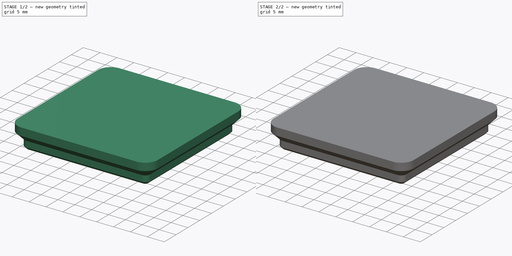
[diagram: build sequence overview — one tinted view per stage of 2, left to right]
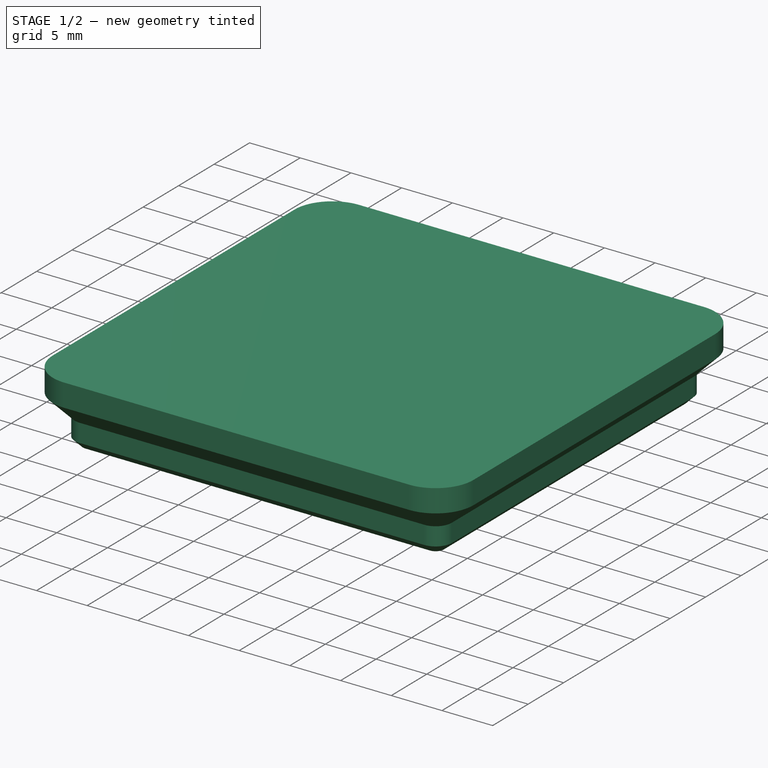
[diagram: stage 1 of 2 — iso view after this stage's code; geometry added in this stage tinted green]
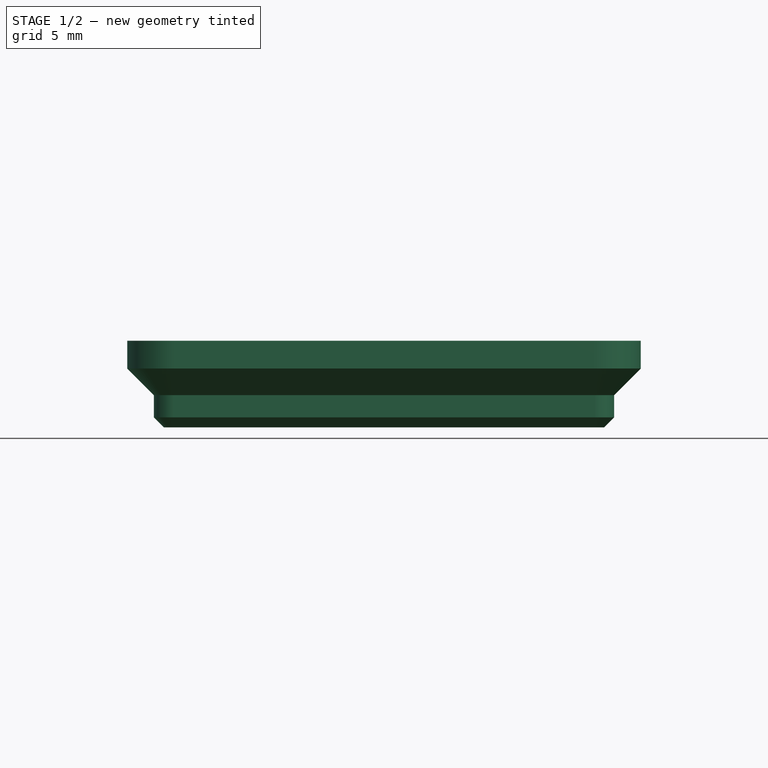
[diagram: stage 1 of 2 — front view after this stage's code; geometry added in this stage tinted green]
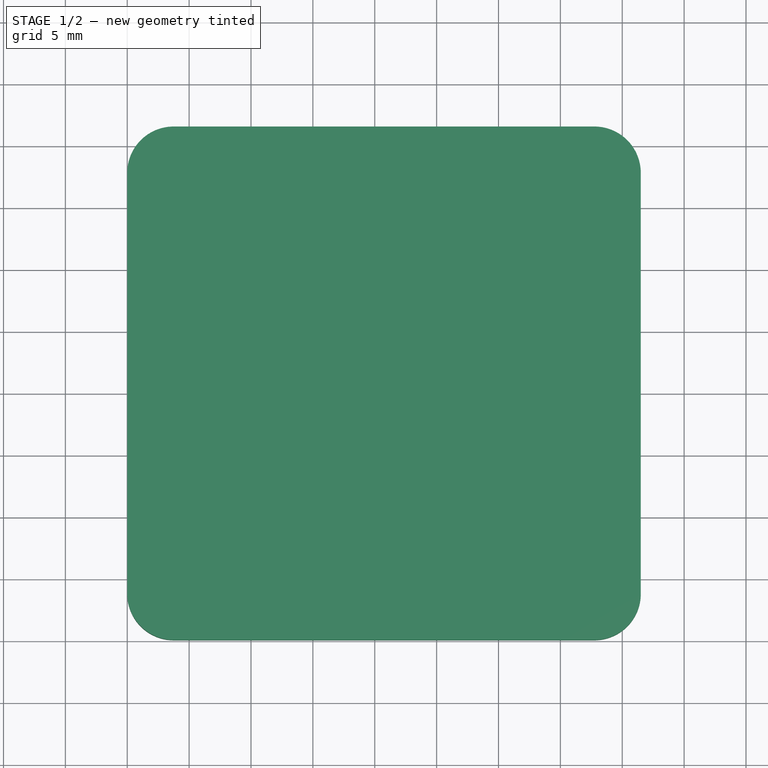
[diagram: stage 1 of 2 — top view after this stage's code; geometry added in this stage tinted green]
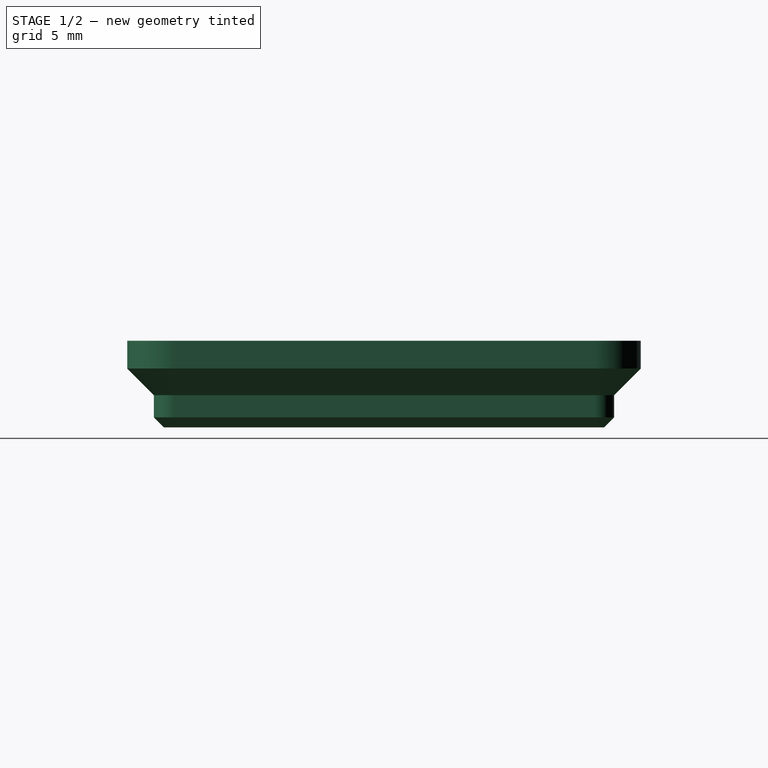
[diagram: stage 1 of 2 — right view after this stage's code; geometry added in this stage tinted green]
FCSTD DOCUMENT  (FreeCAD 0.21R31391 (Git))
Label: Gridfinity-1U-Box
License: CC BY 4.0
LicenseURL: https://creativecommons.org/licenses/by/4.0/
objects: Sketcher::SketchObject×4, PartDesign::AdditivePipe×1, PartDesign::Pad×1, PartDesign::Pocket×1, PartDesign::Body×1, App::Part×1
note: 11 computed .brp shape members not serialized (recipe doc carries the construction recipe); baked Part::Feature solids carry a one-line shape summary decoded from their .brp

FEATURE [Sketcher::SketchObject] Sketch001  label="Path"
  FullyConstrained = true
  MapMode = 5
  Support = -> [XY_Plane001]
  sketch-geometry (10):
    g0: ArcOfCircle CenterX=3.75 CenterY=3.75 CenterZ=0 NormalX=0 NormalY=0 NormalZ=1 AngleXU=0 Radius=3.75 StartAngle=3.14159 EndAngle=4.71239
    g1: LineSegment StartX=1.15343e-11 StartY=3.75 StartZ=0 EndX=1.15343e-11 EndY=37.75 EndZ=0
    g2: ArcOfCircle CenterX=3.75 CenterY=37.75 CenterZ=0 NormalX=0 NormalY=0 NormalZ=1 AngleXU=0 Radius=3.75 StartAngle=1.5708 EndAngle=3.14159
    g3: LineSegment StartX=3.75 StartY=41.5 StartZ=0 EndX=37.75 EndY=41.5 EndZ=0
    g4: ArcOfCircle CenterX=37.75 CenterY=37.75 CenterZ=0 NormalX=0 NormalY=0 NormalZ=1 AngleXU=0 Radius=3.75 StartAngle=1.9105e-12 EndAngle=1.5708
    g5: LineSegment StartX=41.5 StartY=37.75 StartZ=0 EndX=41.5 EndY=3.75 EndZ=0
    g6: ArcOfCircle CenterX=37.75 CenterY=3.75 CenterZ=0 NormalX=0 NormalY=0 NormalZ=1 AngleXU=0 Radius=3.75 StartAngle=4.71239 EndAngle=6.28319
    g7: LineSegment StartX=37.75 StartY=1.15343e-11 StartZ=0 EndX=3.75 EndY=1.15343e-11 EndZ=0
    g8: GeomPoint X=0 Y=0 Z=0
    g9: GeomPoint X=41.5 Y=41.5 Z=0
  constraints (23):
    c: Tangent(g0,g1) = 1.5708
    c: Tangent(g1,g2) = 1.5708
    c: Tangent(g2,g3) = 1.5708
    c: Tangent(g3,g4) = 1.5708
    c: Tangent(g4,g5) = 1.5708
    c: Tangent(g5,g6) = 1.5708
    c: Tangent(g6,g7) = 1.5708
    c: Tangent(g7,g0) = 1.5708
    c: Horizontal(g3)
    c: Horizontal(g7)
    c: Vertical(g1)
    c: Vertical(g5)
    c: Equal(g0,g2)
    c: Equal(g2,g4)
    c: Equal(g4,g6)
    c: PointOnObject(g8,g1)
    c: PointOnObject(g8,g7)
    c: PointOnObject(g9,g3)
    c: PointOnObject(g9,g5)
    c: Coincident(g8,g-1)
    c: DistanceX(g1,g4) = 41.5
    c: DistanceY(g6,g3) = 41.5
    c: Diameter(g4) = 7.5
FEATURE [Sketcher::SketchObject] Sketch  label="1UProfile"
  FullyConstrained = true
  MapMode = 7
  Placement = pos=(37.75,1.15343e-11,0) rot=(0.57735,-0.57735,-0.57735;2.0944rad)
  Support = -> [Sketch001]
  sketch-geometry (6):
    g0: LineSegment StartX=-2.95 StartY=-7 StartZ=0 EndX=-2.15 EndY=-6.2 EndZ=0
    g1: LineSegment StartX=-2.15 StartY=-6.2 StartZ=0 EndX=-2.15 EndY=-4.4 EndZ=0
    g2: LineSegment StartX=-2.15 StartY=-4.4 StartZ=0 EndX=0 EndY=-2.25 EndZ=0
    g3: LineSegment StartX=-2.95 StartY=0 StartZ=0 EndX=-2.95 EndY=-7 EndZ=0
    g4: LineSegment StartX=-2.95 StartY=0 StartZ=0 EndX=0 EndY=0 EndZ=0
    g5: LineSegment StartX=0 StartY=0 StartZ=0 EndX=0 EndY=-2.25 EndZ=0
  constraints (17):
    c: Vertical(g1)
    c: Vertical(g3)
    c: DistanceX(g1,g2) = 2.15
    c: DistanceY(g1,g2) = 2.15
    c: Distance(g1) = 1.8
    c: DistanceY(g0,g0) = 0.8
    c: DistanceX(g0,g0) = 0.8
    c: Horizontal(g4)
    c: Vertical(g5)
    c: DistanceY(g3,g4) = 7
    c: Coincident(g3,g4)
    c: Coincident(g4,g5)
    c: Coincident(g2,g5)
    c: Coincident(g0,g1)
    c: Coincident(g1,g2)
    c: Coincident(g4,g-1)
    c: Coincident(g3,g0)
FEATURE [PartDesign::AdditivePipe] AdditivePipe
  AuxilleryCurvelinear = true
  AuxillerySpineTangent = false
  Binormal = (0,0,0)
  Mode = 0
  Profile = -> Sketch
  Spine = -> Sketch001
  SpineTangent = false
  Transformation = 0
  Transition = 0
FEATURE [Sketcher::SketchObject] Sketch003
  FullyConstrained = true
  MapMode = 2
  Support = -> [AdditivePipe]
  expr: Constraints[21] = 2.15 + 0.8
  sketch-geometry (10):
    g0: ArcOfCircle CenterX=3.75 CenterY=37.75 CenterZ=0 NormalX=0 NormalY=0 NormalZ=1 AngleXU=0 Radius=0.8 StartAngle=1.5708 EndAngle=3.14159
    g1: LineSegment StartX=3.75 StartY=38.55 StartZ=0 EndX=37.75 EndY=38.55 EndZ=0
    g2: ArcOfCircle CenterX=37.75 CenterY=37.75 CenterZ=0 NormalX=0 NormalY=0 NormalZ=1 AngleXU=0 Radius=0.8 StartAngle=1.107e-13 EndAngle=1.5708
    g3: LineSegment StartX=38.55 StartY=37.75 StartZ=0 EndX=38.55 EndY=3.75 EndZ=0
    g4: ArcOfCircle CenterX=37.75 CenterY=3.75 CenterZ=0 NormalX=0 NormalY=0 NormalZ=1 AngleXU=0 Radius=0.8 StartAngle=4.71239 EndAngle=6.28319
    g5: LineSegment StartX=37.75 StartY=2.95 StartZ=0 EndX=3.75 EndY=2.95 EndZ=0
    g6: ArcOfCircle CenterX=3.75 CenterY=3.75 CenterZ=0 NormalX=0 NormalY=0 NormalZ=1 AngleXU=0 Radius=0.8 StartAngle=3.14159 EndAngle=4.71239
    g7: LineSegment StartX=2.95 StartY=3.75 StartZ=0 EndX=2.95 EndY=37.75 EndZ=0
    g8: GeomPoint X=2.95 Y=38.55 Z=0
    g9: GeomPoint X=38.55 Y=2.95 Z=0
  constraints (24):
    c: Tangent(g0,g1) = 1.5708
    c: Tangent(g1,g2) = 1.5708
    c: Tangent(g2,g3) = 1.5708
    c: Tangent(g3,g4) = 1.5708
    c: Tangent(g4,g5) = 1.5708
    c: Tangent(g5,g6) = 1.5708
    c: Tangent(g6,g7) = 1.5708
    c: Tangent(g7,g0) = 1.5708
    c: Horizontal(g1)
    c: Horizontal(g5)
    c: Vertical(g3)
    c: Vertical(g7)
    c: Equal(g0,g2)
    c: Equal(g2,g4)
    c: Equal(g4,g6)
    c: PointOnObject(g8,g1)
    c: PointOnObject(g8,g7)
    c: PointOnObject(g9,g3)
    c: PointOnObject(g9,g5)
    c: DistanceX(g0,g2) = 35.6
    c: DistanceY(g4,g1) = 35.6
    c: DistanceX(g-1,g6) = 2.95
    c: DistanceY(g-1,g5) = 2.95
    c: Diameter(g0) = 1.6
FEATURE [PartDesign::Pad] Pad
  BaseFeature = -> AdditivePipe
  Direction = (0,0,1)
  Length = 7
  Length2 = 10
  Profile = -> Sketch003
  ReferenceAxis = -> Sketch003 [N_Axis]
  Reversed = true
  Type = 0
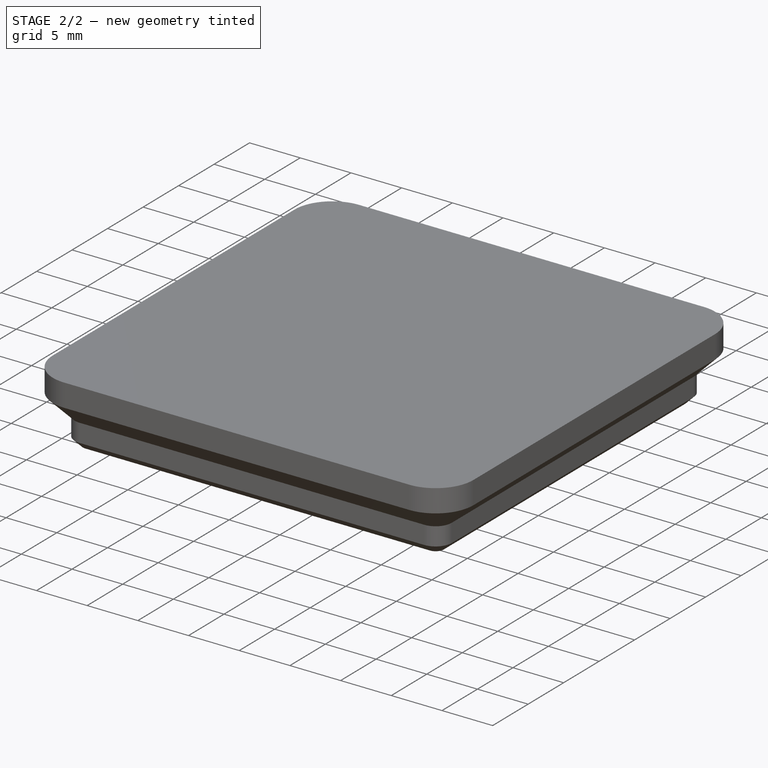
[diagram: stage 2 of 2 — iso view after this stage's code; geometry added in this stage tinted green]
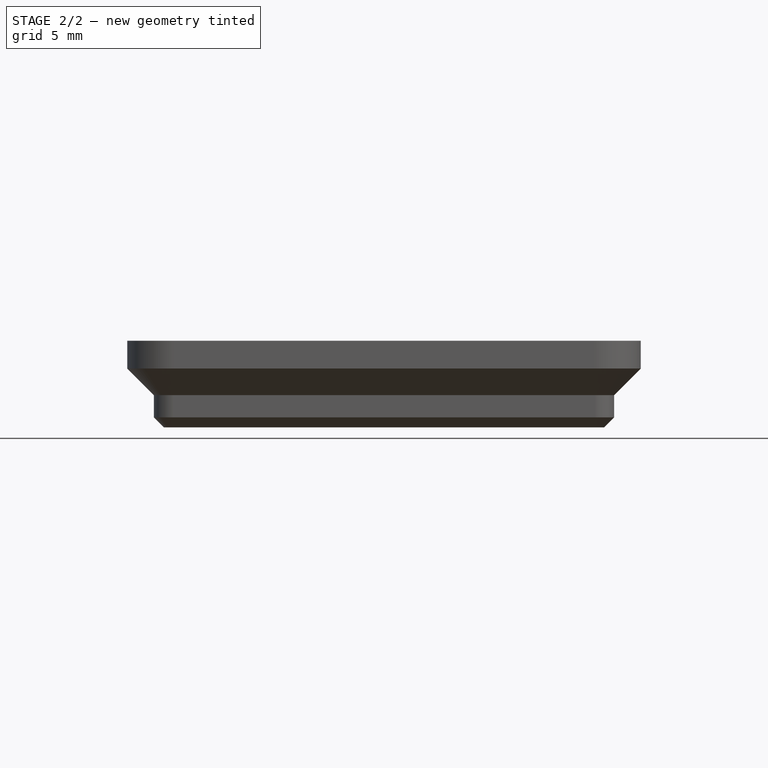
[diagram: stage 2 of 2 — front view after this stage's code; geometry added in this stage tinted green]
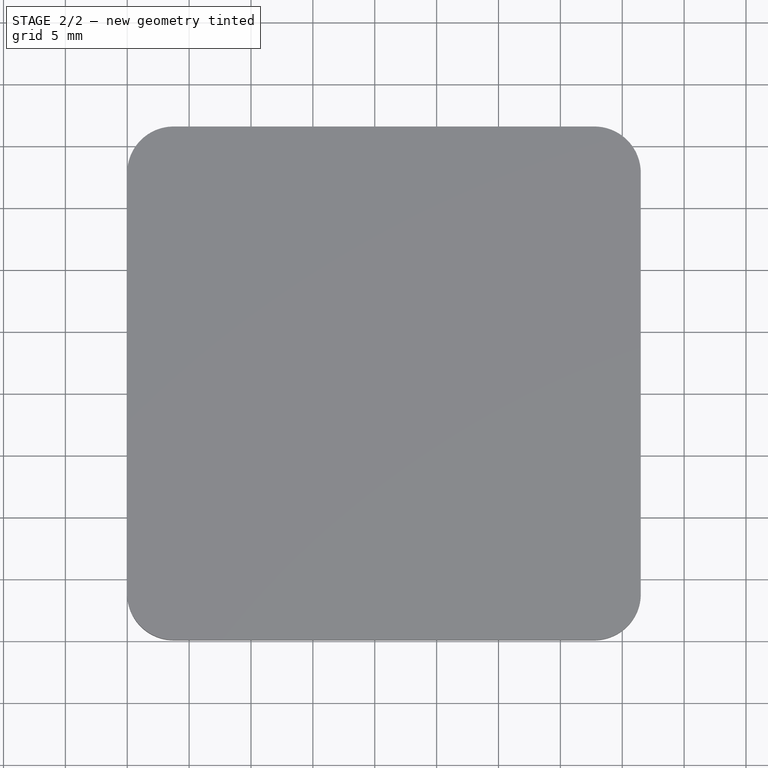
[diagram: stage 2 of 2 — top view after this stage's code; geometry added in this stage tinted green]
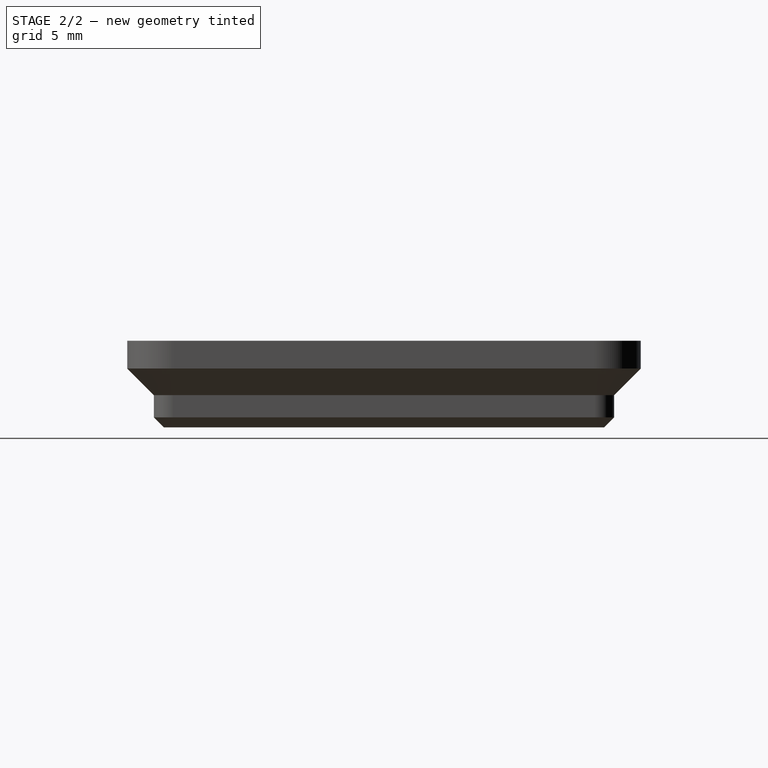
[diagram: stage 2 of 2 — right view after this stage's code; geometry added in this stage tinted green]
FEATURE [Sketcher::SketchObject] Sketch002
  AttachmentOffset = pos=(0,-41.5,0) rot=(0,0,1;0rad)
  FullyConstrained = true
  MapMode = 5
  Placement = pos=(0,41.5,-7) rot=(1,0,0;3.14159rad)
  Support = -> [Pad]
  expr: Constraints[5] = 2.15 + 0.8 + 4.8
  expr: Constraints[8] = 41.5 - 7.75
  sketch-geometry (4):
    g0: Circle CenterX=7.75 CenterY=7.75 CenterZ=0 NormalX=0 NormalY=0 NormalZ=1 AngleXU=0 Radius=3.25
    g1: Circle CenterX=33.75 CenterY=7.75 CenterZ=0 NormalX=0 NormalY=0 NormalZ=1 AngleXU=0 Radius=3.25
    g2: Circle CenterX=33.75 CenterY=33.75 CenterZ=0 NormalX=0 NormalY=0 NormalZ=1 AngleXU=0 Radius=3.25
    g3: Circle CenterX=7.75 CenterY=33.75 CenterZ=0 NormalX=0 NormalY=0 NormalZ=1 AngleXU=0 Radius=3.25
  constraints (12):
    c: Equal(g0,g1)
    c: Equal(g1,g2)
    c: Equal(g2,g3)
    c: Diameter(g0) = 6.5
    c: DistanceX(g-1,g0) = 7.75
    c: DistanceY(g-1,g0) = 7.75
    c: DistanceX(g-1,g3) = 7.75
    c: DistanceY(g-1,g1) = 7.75
    c: DistanceY(g-1,g3) = 33.75
    c: DistanceX(g-1,g1) = 33.75
    c: DistanceX(g-1,g2) = 33.75
    c: DistanceY(g-1,g2) = 33.75
FEATURE [PartDesign::Pocket] Pocket
  BaseFeature = -> Pad
  Direction = (0,0,1)
  Length = 2.1
  Length2 = 5
  Profile = -> Sketch002
  ReferenceAxis = -> Sketch002 [N_Axis]
  Type = 0
FEATURE [PartDesign::Body] Body  label="1U Box Base"
  Group = -> [Sketch,Sketch001,AdditivePipe,Sketch003,Pad,Sketch002,Pocket]
  Origin = -> Origin001
  Tip = -> Pocket
FEATURE [App::Part] Part
  Group = -> [Body]
  Origin = -> Origin
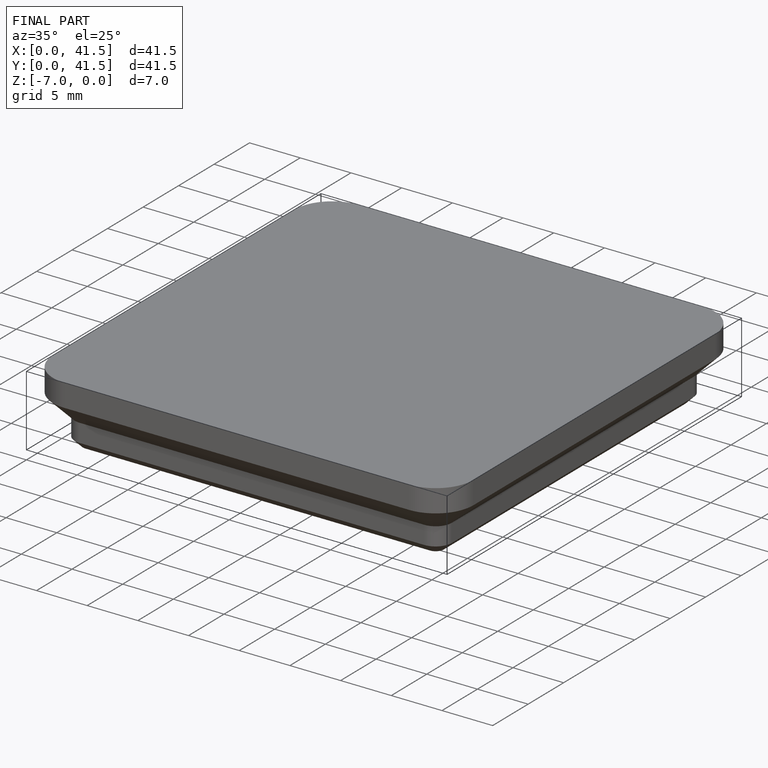
[diagram: finished part — iso view with bounding-box wireframe]
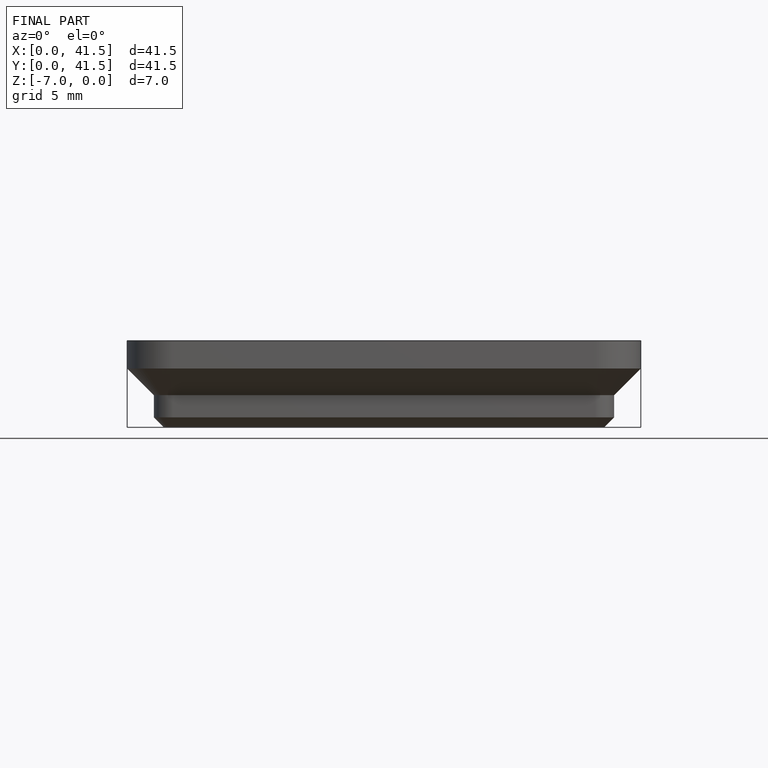
[diagram: finished part — front view with bounding-box wireframe]
